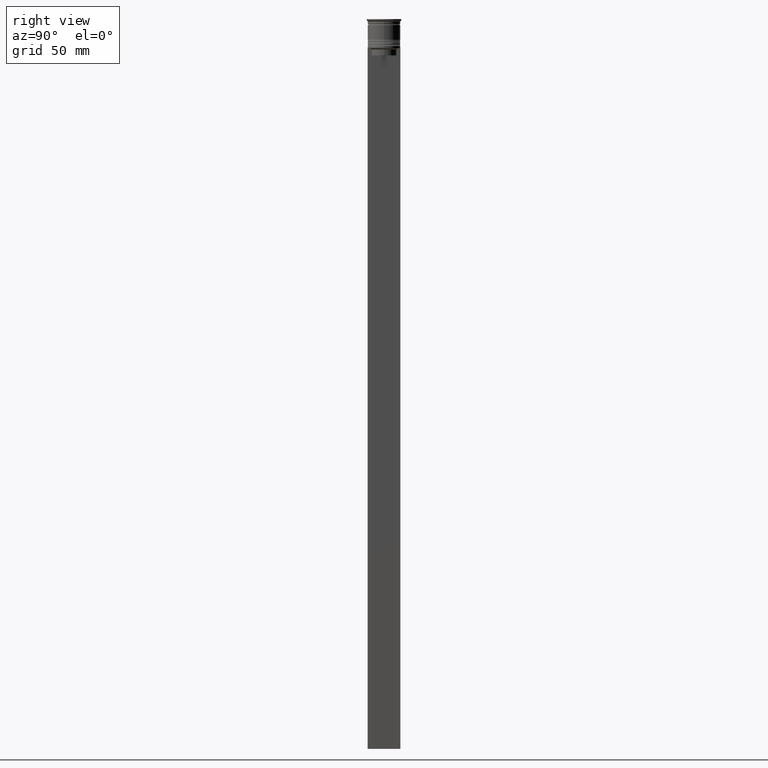
[diagram: clean part render]
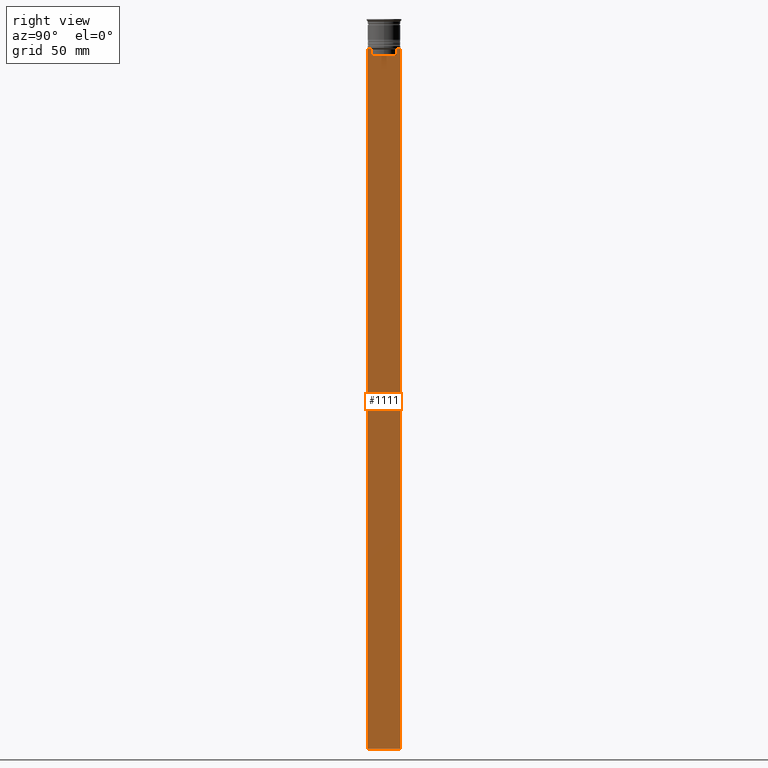
[diagram: same view with one face highlighted and labeled with its STEP entity id]
A machine part, right view. The second image highlights one B-rep face of the part: STEP entity #1111.
In plain terms, the highlighted planar face has unit normal (-1, 0, 0).
Its self-contained STEP definition (entity closure, byte-faithful):
#35 = VECTOR ( 'NONE', #175, 1000.000000000000000 ) ;
#60 = VERTEX_POINT ( 'NONE', #1455 ) ;
#67 = VERTEX_POINT ( 'NONE', #518 ) ;
#70 = EDGE_CURVE ( 'NONE', #581, #1649, #2024, .T. ) ;
#72 = CARTESIAN_POINT ( 'NONE',  ( 0.5000000000000000000, 5.376802023508029826, -15.50000000000000000 ) ) ;
#88 = LINE ( 'NONE', #1986, #1525 ) ;
#121 = CARTESIAN_POINT ( 'NONE',  ( 0.5000000000000000000, -6.999999999999997335, -312.5000000000000000 ) ) ;
#129 = ORIENTED_EDGE ( 'NONE', *, *, #1314, .T. ) ;
#135 = EDGE_CURVE ( 'NONE', #2488, #1278, #2485, .T. ) ;
#137 = LINE ( 'NONE', #1155, #1052 ) ;
#138 = CARTESIAN_POINT ( 'NONE',  ( 0.5000000000000000000, -6.999999999999997335, -12.50000000000000000 ) ) ;
#175 = DIRECTION ( 'NONE',  ( 0.000000000000000000, -1.000000000000000000, 0.000000000000000000 ) ) ;
#180 = DIRECTION ( 'NONE',  ( 0.000000000000000000, 0.000000000000000000, -1.000000000000000000 ) ) ;
#181 = DIRECTION ( 'NONE',  ( 0.000000000000000000, -1.000000000000000000, 0.000000000000000000 ) ) ;
#204 = ORIENTED_EDGE ( 'NONE', *, *, #774, .T. ) ;
#208 = ORIENTED_EDGE ( 'NONE', *, *, #70, .T. ) ;
#248 = CARTESIAN_POINT ( 'NONE',  ( 0.5000000000000000000, -6.999999999999997335, 1.535668847618198329 ) ) ;
#278 = LINE ( 'NONE', #1391, #1400 ) ;
#279 = DIRECTION ( 'NONE',  ( 0.000000000000000000, -1.000000000000000000, 0.000000000000000000 ) ) ;
#284 = VERTEX_POINT ( 'NONE', #1951 ) ;
#321 = CARTESIAN_POINT ( 'NONE',  ( 0.5000000000000000000, -6.999999999999997335, -12.50000000000000000 ) ) ;
#434 = VERTEX_POINT ( 'NONE', #1253 ) ;
#461 = DIRECTION ( 'NONE',  ( -0.000000000000000000, -0.000000000000000000, 1.000000000000000000 ) ) ;
#515 = ORIENTED_EDGE ( 'NONE', *, *, #993, .T. ) ;
#518 = CARTESIAN_POINT ( 'NONE',  ( 0.5000000000000000000, -5.376802023508029826, -13.00000000000000178 ) ) ;
#521 = CARTESIAN_POINT ( 'NONE',  ( 0.5000000000000000000, 7.000000000000002665, 1.535668847618198329 ) ) ;
#567 = ORIENTED_EDGE ( 'NONE', *, *, #2137, .T. ) ;
#568 = LINE ( 'NONE', #521, #617 ) ;
#581 = VERTEX_POINT ( 'NONE', #1102 ) ;
#595 = CARTESIAN_POINT ( 'NONE',  ( 0.5000000000000000000, -5.544156999454441959, -12.83336396790503642 ) ) ;
#617 = VECTOR ( 'NONE', #781, 1000.000000000000000 ) ;
#655 = ORIENTED_EDGE ( 'NONE', *, *, #2184, .T. ) ;
#699 = VECTOR ( 'NONE', #1977, 1000.000000000000000 ) ;
#726 = ORIENTED_EDGE ( 'NONE', *, *, #936, .F. ) ;
#743 = DIRECTION ( 'NONE',  ( 0.000000000000000000, -1.000000000000000000, 0.000000000000000000 ) ) ;
#753 = EDGE_CURVE ( 'NONE', #1278, #67, #278, .T. ) ;
#770 = CARTESIAN_POINT ( 'NONE',  ( 0.5000000000000000000, -5.376802023508029826, -13.00000000000000178 ) ) ;
#774 = EDGE_CURVE ( 'NONE', #60, #1736, #1432, .T. ) ;
#781 = DIRECTION ( 'NONE',  ( 0.000000000000000000, 0.000000000000000000, -1.000000000000000000 ) ) ;
#819 = CARTESIAN_POINT ( 'NONE',  ( 0.5000000000000000000, 7.000000000000002665, -12.50000000000000000 ) ) ;
#881 = VERTEX_POINT ( 'NONE', #1269 ) ;
#918 = EDGE_CURVE ( 'NONE', #1581, #2488, #137, .T. ) ;
#936 = EDGE_CURVE ( 'NONE', #1566, #1736, #568, .T. ) ;
#959 = EDGE_CURVE ( 'NONE', #284, #60, #2493, .T. ) ;
#993 = EDGE_CURVE ( 'NONE', #67, #581, #1595, .T. ) ;
#1052 = VECTOR ( 'NONE', #2029, 1000.000000000000000 ) ;
#1081 = DIRECTION ( 'NONE',  ( 0.000000000000000000, -1.000000000000000000, 0.000000000000000000 ) ) ;
#1102 = CARTESIAN_POINT ( 'NONE',  ( 0.5000000000000000000, -5.878775382679629402, -12.50000000000000000 ) ) ;
#1110 = LINE ( 'NONE', #1505, #2047 ) ;
#1111 = ADVANCED_FACE ( 'NONE', ( #1193 ), #1955, .F. ) ;
#1155 = CARTESIAN_POINT ( 'NONE',  ( 0.5000000000000000000, 5.376802023508029826, 0.000000000000000000 ) ) ;
#1193 = FACE_OUTER_BOUND ( 'NONE', #1530, .T. ) ;
#1201 = ORIENTED_EDGE ( 'NONE', *, *, #135, .T. ) ;
#1253 = CARTESIAN_POINT ( 'NONE',  ( 0.5000000000000000000, 5.878775382679629402, -12.50000000000000000 ) ) ;
#1269 = CARTESIAN_POINT ( 'NONE',  ( 0.5000000000000000000, 6.881860213634102053, -12.50000000000000000 ) ) ;
#1278 = VERTEX_POINT ( 'NONE', #1297 ) ;
#1297 = CARTESIAN_POINT ( 'NONE',  ( 0.5000000000000000000, -5.376802023508029826, -15.50000000000000000 ) ) ;
#1304 = CARTESIAN_POINT ( 'NONE',  ( 0.5000000000000000000, 5.400000000000003908, -15.50000000000000000 ) ) ;
#1309 = VECTOR ( 'NONE', #1081, 1000.000000000000000 ) ;
#1314 = EDGE_CURVE ( 'NONE', #434, #1581, #1330, .T. ) ;
#1325 = ORIENTED_EDGE ( 'NONE', *, *, #918, .T. ) ;
#1330 = B_SPLINE_CURVE_WITH_KNOTS ( 'NONE', 3,
 ( #2307, #2064, #1337, #2462 ),
 .UNSPECIFIED., .F., .F.,
 ( 4, 4 ),
 ( 0.01003009312103698807, 0.01073859663834952557 ),
 .UNSPECIFIED. ) ;
#1337 = CARTESIAN_POINT ( 'NONE',  ( 0.5000000000000000000, 5.544156989057553275, -12.83336397825725861 ) ) ;
#1338 = CARTESIAN_POINT ( 'NONE',  ( 0.5000000000000000000, -5.711478856069293286, -12.66669469529570335 ) ) ;
#1391 = CARTESIAN_POINT ( 'NONE',  ( 0.5000000000000000000, -5.376802023508029826, 0.000000000000000000 ) ) ;
#1400 = VECTOR ( 'NONE', #461, 1000.000000000000000 ) ;
#1413 = ORIENTED_EDGE ( 'NONE', *, *, #959, .T. ) ;
#1432 = LINE ( 'NONE', #121, #699 ) ;
#1455 = CARTESIAN_POINT ( 'NONE',  ( 0.5000000000000000000, -6.999999999999997335, -312.5000000000000000 ) ) ;
#1505 = CARTESIAN_POINT ( 'NONE',  ( 0.5000000000000000000, -6.999999999999997335, -12.50000000000000000 ) ) ;
#1525 = VECTOR ( 'NONE', #279, 1000.000000000000000 ) ;
#1530 = EDGE_LOOP ( 'NONE', ( #567, #129, #1325, #1201, #2235, #515, #208, #655, #1413, #204, #726, #1859 ) ) ;
#1566 = VERTEX_POINT ( 'NONE', #819 ) ;
#1581 = VERTEX_POINT ( 'NONE', #1853 ) ;
#1595 = B_SPLINE_CURVE_WITH_KNOTS ( 'NONE', 3,
 ( #770, #595, #1338, #2424 ),
 .UNSPECIFIED., .F., .F.,
 ( 4, 4 ),
 ( 0.02539176325380714666, 0.02610162431828674801 ),
 .UNSPECIFIED. ) ;
#1649 = VERTEX_POINT ( 'NONE', #1826 ) ;
#1683 = VECTOR ( 'NONE', #180, 1000.000000000000000 ) ;
#1727 = VECTOR ( 'NONE', #743, 1000.000000000000000 ) ;
#1736 = VERTEX_POINT ( 'NONE', #1893 ) ;
#1766 = DIRECTION ( 'NONE',  ( 0.000000000000000000, 0.000000000000000000, 1.000000000000000000 ) ) ;
#1826 = CARTESIAN_POINT ( 'NONE',  ( 0.5000000000000000000, -6.881860213634102053, -12.50000000000000000 ) ) ;
#1853 = CARTESIAN_POINT ( 'NONE',  ( 0.5000000000000000000, 5.376802023508029826, -13.00000000000000178 ) ) ;
#1859 = ORIENTED_EDGE ( 'NONE', *, *, #2323, .T. ) ;
#1893 = CARTESIAN_POINT ( 'NONE',  ( 0.5000000000000000000, 7.000000000000002665, -312.5000000000000000 ) ) ;
#1900 = CARTESIAN_POINT ( 'NONE',  ( 0.5000000000000000000, -6.999999999999997335, 1.535668847618198329 ) ) ;
#1951 = CARTESIAN_POINT ( 'NONE',  ( 0.5000000000000000000, -6.999999999999997335, -12.50000000000000000 ) ) ;
#1955 = PLANE ( 'NONE',  #2249 ) ;
#1977 = DIRECTION ( 'NONE',  ( 0.000000000000000000, 1.000000000000000000, 0.000000000000000000 ) ) ;
#1986 = CARTESIAN_POINT ( 'NONE',  ( 0.5000000000000000000, -6.999999999999997335, -12.50000000000000000 ) ) ;
#2024 = LINE ( 'NONE', #321, #1309 ) ;
#2029 = DIRECTION ( 'NONE',  ( 0.000000000000000000, 0.000000000000000000, -1.000000000000000000 ) ) ;
#2047 = VECTOR ( 'NONE', #181, 1000.000000000000000 ) ;
#2064 = CARTESIAN_POINT ( 'NONE',  ( 0.5000000000000000000, 5.711478846560141598, -12.66669470477064685 ) ) ;
#2137 = EDGE_CURVE ( 'NONE', #881, #434, #88, .T. ) ;
#2184 = EDGE_CURVE ( 'NONE', #1649, #284, #2252, .T. ) ;
#2235 = ORIENTED_EDGE ( 'NONE', *, *, #753, .T. ) ;
#2249 = AXIS2_PLACEMENT_3D ( 'NONE', #248, #2363, #1766 ) ;
#2252 = LINE ( 'NONE', #138, #1727 ) ;
#2307 = CARTESIAN_POINT ( 'NONE',  ( 0.5000000000000000000, 5.878775382679629402, -12.50000000000000000 ) ) ;
#2323 = EDGE_CURVE ( 'NONE', #1566, #881, #1110, .T. ) ;
#2363 = DIRECTION ( 'NONE',  ( -1.000000000000000000, 0.000000000000000000, 0.000000000000000000 ) ) ;
#2424 = CARTESIAN_POINT ( 'NONE',  ( 0.5000000000000000000, -5.878775382679629402, -12.50000000000000000 ) ) ;
#2462 = CARTESIAN_POINT ( 'NONE',  ( 0.5000000000000000000, 5.376802023508029826, -13.00000000000000178 ) ) ;
#2485 = LINE ( 'NONE', #1304, #35 ) ;
#2488 = VERTEX_POINT ( 'NONE', #72 ) ;
#2493 = LINE ( 'NONE', #1900, #1683 ) ;